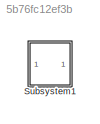
MODEL slx_5b76fc12ef3b
KIND model
CONFIG AbsTol = auto
CONFIG EnableMultiTasking = off
CONFIG FixedStep = 1/128
CONFIG MaxStep = 1/128
CONFIG MinStep = auto
CONFIG RelTol = 1e-3
CONFIG SampleTimeConstraint = Unconstrained
CONFIG SolverName = ode4
CONFIG StartTime = 0.0
CONFIG StopTime = 10.0
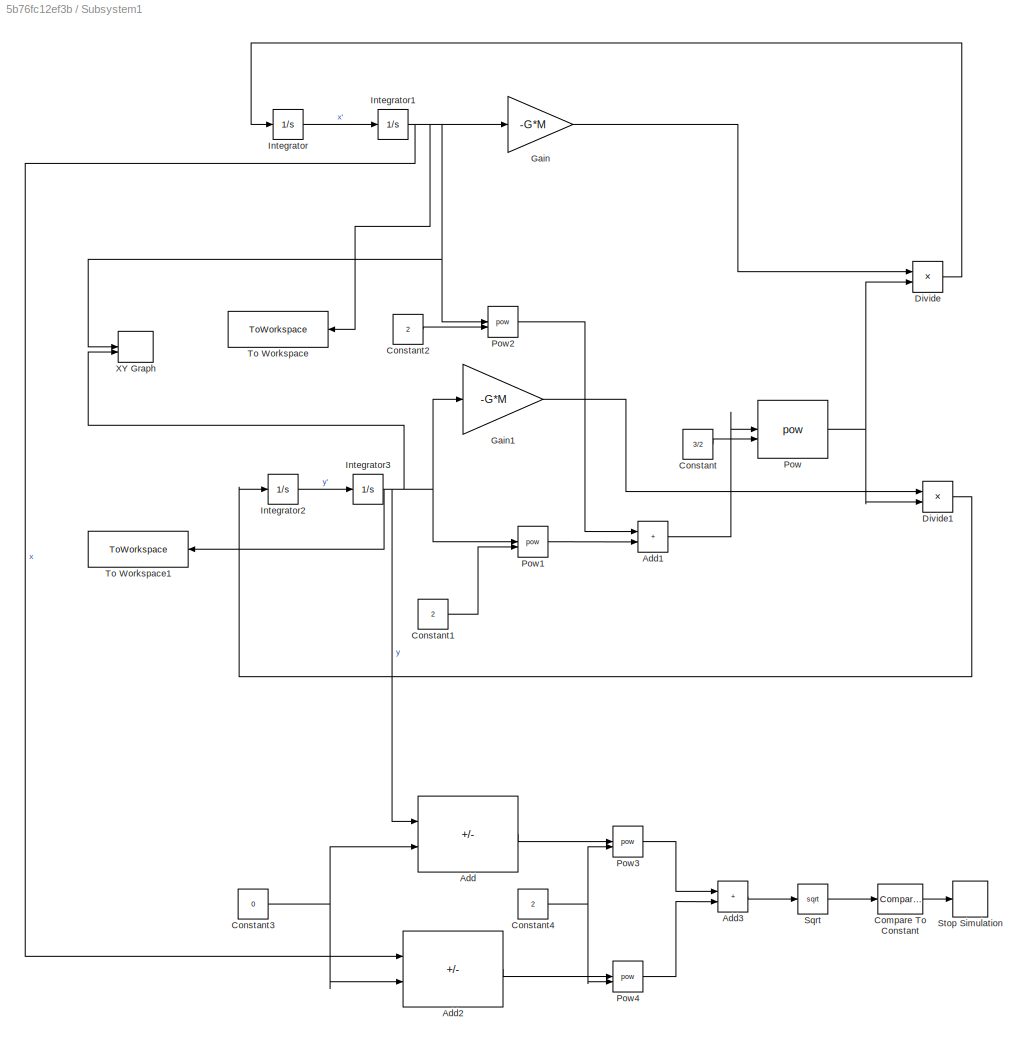
BLOCK [SubSystem] Subsystem1
BLOCK [Sum] Subsystem1/Add
  IconShape = rectangular
  Inputs = +-
BLOCK [Sum] Subsystem1/Add1
  IconShape = rectangular
BLOCK [Sum] Subsystem1/Add2
  IconShape = rectangular
  Inputs = +-
BLOCK [Sum] Subsystem1/Add3
  IconShape = rectangular
BLOCK [Reference] Subsystem1/Compare To Constant  REF=simulink/Logic and Bit
Operations/Compare
To Constant
  SourceBlock = simulink/Logic and Bit\nOperations/Compare\nTo Constant
  SourceType = Compare To Constant
BLOCK [Constant] Subsystem1/Constant
  Value = 3/2
BLOCK [Constant] Subsystem1/Constant1
  Value = 2
BLOCK [Constant] Subsystem1/Constant2
  Value = 2
BLOCK [Constant] Subsystem1/Constant3
  Value = 0
BLOCK [Constant] Subsystem1/Constant4
  Value = 2
BLOCK [Product] Subsystem1/Divide
  Inputs = */
BLOCK [Product] Subsystem1/Divide1
  Inputs = */
BLOCK [Gain] Subsystem1/Gain
  Gain = -G*M
BLOCK [Gain] Subsystem1/Gain1
  Gain = -G*M
BLOCK [Integrator] Subsystem1/Integrator
  InitialCondition = Vx
BLOCK [Integrator] Subsystem1/Integrator1
  InitialCondition = x
BLOCK [Integrator] Subsystem1/Integrator2
  InitialCondition = Vy
BLOCK [Integrator] Subsystem1/Integrator3
  InitialCondition = y
BLOCK [Math] Subsystem1/Pow
  Operator = pow
  RndMeth = Zero
BLOCK [Math] Subsystem1/Pow1
  Operator = pow
  RndMeth = Zero
BLOCK [Math] Subsystem1/Pow2
  Operator = pow
  RndMeth = Zero
BLOCK [Math] Subsystem1/Pow3
  Operator = pow
  RndMeth = Zero
BLOCK [Math] Subsystem1/Pow4
  Operator = pow
  RndMeth = Zero
BLOCK [Sqrt] Subsystem1/Sqrt
BLOCK [Stop] Subsystem1/Stop Simulation
BLOCK [ToWorkspace] Subsystem1/To Workspace
  FixptAsFi = on
  MaxDataPoints = inf
  NameLocation = top
  SampleTime = -1
  SaveFormat = Timeseries
  VariableName = x_output
BLOCK [ToWorkspace] Subsystem1/To Workspace1
  FixptAsFi = on
  MaxDataPoints = inf
  NameLocation = top
  SampleTime = -1
  SaveFormat = Timeseries
  VariableName = y_output
BLOCK [Record] Subsystem1/XY Graph
  CompatibilityTag = XY
  FileSettingsInternal = {"entries":[{"content":{"excelSettings":{"content":{},"type":"Streamout.ExcelSettings"}},"type":"Streamout.FileSettingStorage","uuid":""}],"packageUris":["http:\/\/schema.mathworks.com\/mf0\/streamout_blocks\/R2020a"],"version":"1.0"}
  Layout = [1 1]
  SignalsInternal = {"entries":[{"content":{"signals":[{"content":{"blockPath":[],"dimensions":[1],"domain":"","lineColor":"#a2142f","plots":[ 1 ],"port":1,"sid":[""],"signalID":1,"signalName":"x"},"type":"RecordBlkView.Signal","uuid":""},{"content":{"blockPath":[],"dimensions":[1],"domain":"","lineColor":"#139fff","plots":[ 1 ],"port":2,"sid":[""],"signalID":2,"signalName":"y"},"type":"RecordBlkView.Signal","uuid":"...<+148ch>
  VisualizationBindings = {"xyplotplugin":{"info":[{"series":[{"bindingParametersList":[{"parameter":"X-Axis","signalID":1,"signalName":"x"},{"parameter":"Y-Axis","signalID":2,"signalName":"y"}],"seriesID":0}],"subplotID":1}]}}
LINE Subsystem1/Add1:1 -> Subsystem1/Pow:1
LINE Subsystem1/Add2:1 -> Subsystem1/Pow4:1
LINE Subsystem1/Add3:1 -> Subsystem1/Sqrt:1
LINE Subsystem1/Add:1 -> Subsystem1/Pow3:1
LINE Subsystem1/Compare To Constant:1 -> Subsystem1/Stop Simulation:1
LINE Subsystem1/Constant1:1 -> Subsystem1/Pow1:2
LINE Subsystem1/Constant2:1 -> Subsystem1/Pow2:2
NET Subsystem1/Constant3:1 -> Subsystem1/Add2:2, Subsystem1/Add:2
NET Subsystem1/Constant4:1 -> Subsystem1/Pow3:2, Subsystem1/Pow4:2
LINE Subsystem1/Constant:1 -> Subsystem1/Pow:2
LINE Subsystem1/Divide1:1 -> Subsystem1/Integrator2:1
LINE Subsystem1/Divide:1 -> Subsystem1/Integrator:1
LINE Subsystem1/Gain1:1 -> Subsystem1/Divide1:1
LINE Subsystem1/Gain:1 -> Subsystem1/Divide:1
NET Subsystem1/Integrator1:1 -> Subsystem1/Add2:1, Subsystem1/Gain:1, Subsystem1/Pow2:1, Subsystem1/To Workspace:1, Subsystem1/XY Graph:1
LINE Subsystem1/Integrator2:1 -> Subsystem1/Integrator3:1
NET Subsystem1/Integrator3:1 -> Subsystem1/Add:1, Subsystem1/Gain1:1, Subsystem1/Pow1:1, Subsystem1/To Workspace1:1, Subsystem1/XY Graph:2
LINE Subsystem1/Integrator:1 -> Subsystem1/Integrator1:1
LINE Subsystem1/Pow1:1 -> Subsystem1/Add1:2
LINE Subsystem1/Pow2:1 -> Subsystem1/Add1:1
LINE Subsystem1/Pow3:1 -> Subsystem1/Add3:1
LINE Subsystem1/Pow4:1 -> Subsystem1/Add3:2
NET Subsystem1/Pow:1 -> Subsystem1/Divide1:2, Subsystem1/Divide:2
LINE Subsystem1/Sqrt:1 -> Subsystem1/Compare To Constant:1
note: NET lines group one-source signal fan-out (src -> all destinations, sorted); 1:1 wires keep LINE
